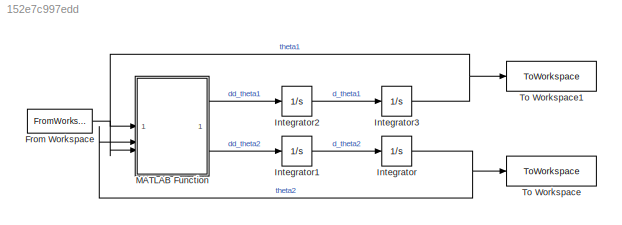
MODEL slx_152e7c997edd
KIND model
CONFIG AbsTol = auto
CONFIG EnableMultiTasking = off
CONFIG FixedStep = auto
CONFIG MaxStep = auto
CONFIG MinStep = auto
CONFIG RelTol = 1e-3
CONFIG SampleTimeConstraint = Unconstrained
CONFIG SolverName = VariableStepAuto
CONFIG StartTime = 0.0
CONFIG StopTime = 60
BLOCK [FromWorkspace] From Workspace
  VariableName = F
BLOCK [Integrator] Integrator
  InitialCondition = x0(2)
BLOCK [Integrator] Integrator1
BLOCK [Integrator] Integrator2
BLOCK [Integrator] Integrator3
  InitialCondition = x0(1)
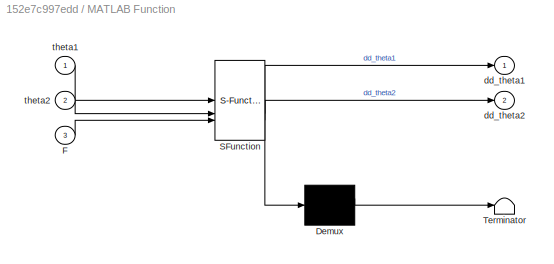
BLOCK [SubSystem] MATLAB Function
  ErrorFcn = Stateflow.Translate.translate
  PermitHierarchicalResolution = ExplicitOnly
  SFBlockType = MATLAB Function
  TreatAsAtomicUnit = on
BLOCK [Demux] MATLAB Function/ Demux 
  Outputs = 1
BLOCK [S-Function] MATLAB Function/ SFunction 
  EnableBusSupport = on
  FunctionName = sf_sfun
  PortCounts = [3 3]
  SFcnIsStateOwnerBlock = off
  SFunctionDeploymentMode = off
  Tag = Stateflow S-Function 2
BLOCK [Terminator] MATLAB Function/ Terminator 
BLOCK [Inport] MATLAB Function/F
  Port = 3
BLOCK [Outport] MATLAB Function/dd_theta1
BLOCK [Outport] MATLAB Function/dd_theta2
  Port = 2
BLOCK [Inport] MATLAB Function/theta1
BLOCK [Inport] MATLAB Function/theta2
  Port = 2
BLOCK [ToWorkspace] To Workspace
  FixptAsFi = on
  MaxDataPoints = inf
  SampleTime = -1
  SaveFormat = Timeseries
  VariableName = theta2
BLOCK [ToWorkspace] To Workspace1
  FixptAsFi = on
  MaxDataPoints = inf
  SampleTime = -1
  SaveFormat = Timeseries
  VariableName = theta1
LINE From Workspace:1 -> MATLAB Function:3
LINE Integrator1:1 -> Integrator:1
LINE Integrator2:1 -> Integrator3:1
NET Integrator3:1 -> MATLAB Function:1, To Workspace1:1
NET Integrator:1 -> MATLAB Function:2, To Workspace:1
LINE MATLAB Function:1 -> Integrator2:1
LINE MATLAB Function:2 -> Integrator1:1
note: NET lines group one-source signal fan-out (src -> all destinations, sorted); 1:1 wires keep LINE
CHART MATLAB Function states=1 transitions=1
  STATE_LABEL 'eML_blk_kernel()'
  STATE_LABEL 'SCRIPT:\nfunction [dd_theta1,dd_theta2]= fcn(theta1, theta2,F)\n\n\nM=1;\nL=1;\ng=9.81;\nk=100;\n\ndd_theta1=(F-M*g*L*sin(theta1)-1/4*k*(L^2)*(sin(theta1)-sin(theta2))*cos(theta1))/(M*L^2);\n\ndd_theta2=(-M*g*L*sin(theta2)+1/4*k*(L^2)*(sin(theta1)-sin(theta2))*cos(theta2))/(M*L^2);'
CHART  states=0 transitions=0
